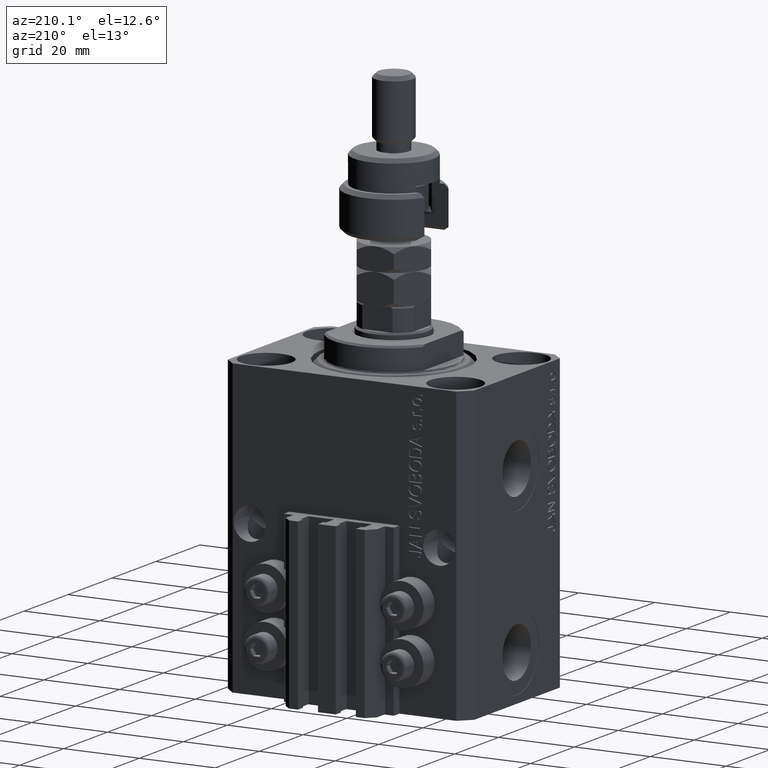
[diagram: clean part render]
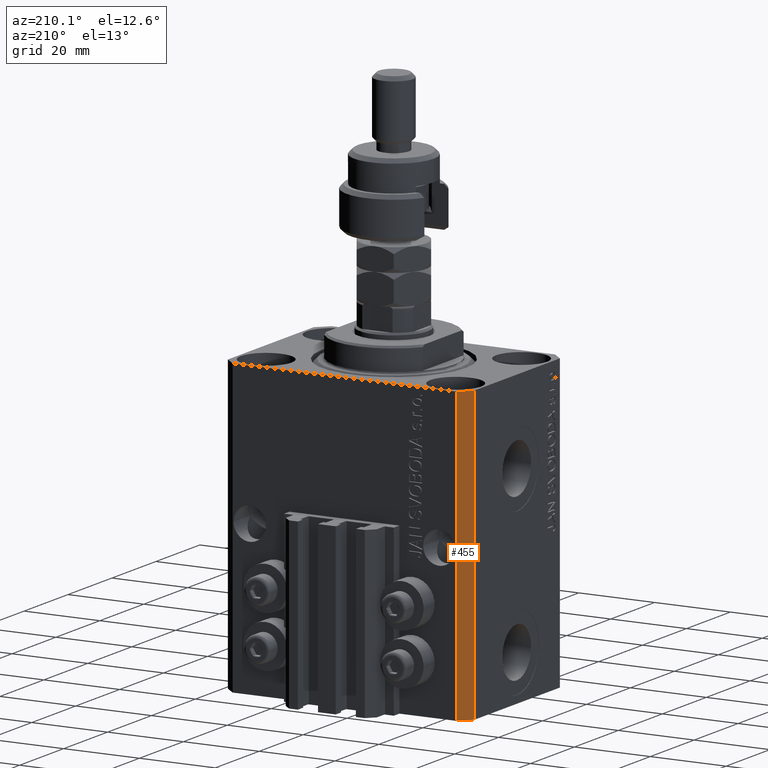
[diagram: same view with one face highlighted and labeled with its STEP entity id]
A machine part, auxiliary view. The second image highlights one B-rep face of the part: STEP entity #455.
In plain terms, the highlighted planar face has unit normal (-0.7071, 0.7071, 0).
Its self-contained STEP definition (entity closure, byte-faithful):
#366 = DIRECTION ( 'NONE',  ( -0.7071067811865474617, -0.7071067811865474617, 0.000000000000000000 ) ) ;
#455 = ADVANCED_FACE ( 'NONE', ( #34973 ), #12259, .T. ) ;
#625 = CARTESIAN_POINT ( 'NONE',  ( -29.49999999999650413, 22.49999999999949907, -77.00000000000000000 ) ) ;
#2941 = CARTESIAN_POINT ( 'NONE',  ( -32.49999999999650413, 19.49999999999949907, -77.00000000000000000 ) ) ;
#3959 = CARTESIAN_POINT ( 'NONE',  ( -29.49999999999650413, 22.49999999999949907, -77.00000000000000000 ) ) ;
#4507 = LINE ( 'NONE', #4756, #46738 ) ;
#4756 = CARTESIAN_POINT ( 'NONE',  ( -29.49999999999650413, 22.49999999999949907, -77.00000000000000000 ) ) ;
#5333 = VERTEX_POINT ( 'NONE', #31648 ) ;
#5506 = CARTESIAN_POINT ( 'NONE',  ( -29.49999999999650413, 22.49999999999949907, 0.000000000000000000 ) ) ;
#5784 = VERTEX_POINT ( 'NONE', #5506 ) ;
#6421 = ORIENTED_EDGE ( 'NONE', *, *, #29967, .F. ) ;
#7643 = AXIS2_PLACEMENT_3D ( 'NONE', #625, #15815, #366 ) ;
#10759 = DIRECTION ( 'NONE',  ( 0.000000000000000000, 0.000000000000000000, 1.000000000000000000 ) ) ;
#12203 = EDGE_CURVE ( 'NONE', #5333, #35828, #41336, .T. ) ;
#12259 = PLANE ( 'NONE',  #7643 ) ;
#13614 = CARTESIAN_POINT ( 'NONE',  ( -29.49999999999650413, 22.49999999999949907, 0.000000000000000000 ) ) ;
#15815 = DIRECTION ( 'NONE',  ( -0.7071067811865475727, 0.7071067811865475727, 0.000000000000000000 ) ) ;
#19430 = ORIENTED_EDGE ( 'NONE', *, *, #12203, .T. ) ;
#20134 = CARTESIAN_POINT ( 'NONE',  ( -32.49999999999650413, 19.49999999999949907, 0.000000000000000000 ) ) ;
#24071 = ORIENTED_EDGE ( 'NONE', *, *, #38004, .T. ) ;
#27862 = CARTESIAN_POINT ( 'NONE',  ( -29.49999999999650413, 22.49999999999949907, -77.00000000000000000 ) ) ;
#28025 = DIRECTION ( 'NONE',  ( 0.000000000000000000, 0.000000000000000000, 1.000000000000000000 ) ) ;
#28836 = EDGE_CURVE ( 'NONE', #42574, #5784, #4507, .T. ) ;
#29018 = DIRECTION ( 'NONE',  ( -0.7071067811865474617, -0.7071067811865474617, 0.000000000000000000 ) ) ;
#29266 = LINE ( 'NONE', #13614, #30631 ) ;
#29967 = EDGE_CURVE ( 'NONE', #5784, #35828, #29266, .T. ) ;
#30631 = VECTOR ( 'NONE', #29018, 1000.000000000000114 ) ;
#31648 = CARTESIAN_POINT ( 'NONE',  ( -32.49999999999650413, 19.49999999999949907, -77.00000000000000000 ) ) ;
#34174 = VECTOR ( 'NONE', #10759, 1000.000000000000000 ) ;
#34973 = FACE_OUTER_BOUND ( 'NONE', #38418, .T. ) ;
#35828 = VERTEX_POINT ( 'NONE', #20134 ) ;
#36092 = ORIENTED_EDGE ( 'NONE', *, *, #28836, .F. ) ;
#37593 = DIRECTION ( 'NONE',  ( -0.7071067811865474617, -0.7071067811865474617, 0.000000000000000000 ) ) ;
#38004 = EDGE_CURVE ( 'NONE', #42574, #5333, #42116, .T. ) ;
#38418 = EDGE_LOOP ( 'NONE', ( #6421, #36092, #24071, #19430 ) ) ;
#41336 = LINE ( 'NONE', #2941, #34174 ) ;
#42116 = LINE ( 'NONE', #3959, #48746 ) ;
#42574 = VERTEX_POINT ( 'NONE', #27862 ) ;
#46738 = VECTOR ( 'NONE', #28025, 1000.000000000000000 ) ;
#48746 = VECTOR ( 'NONE', #37593, 1000.000000000000114 ) ;